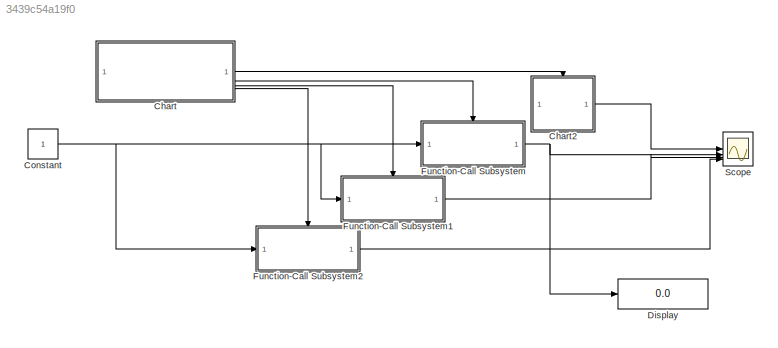
MODEL slx_3439c54a19f0
KIND model
CONFIG AbsTol = auto
CONFIG EnableMultiTasking = off
CONFIG FixedStep = auto
CONFIG MaxStep = auto
CONFIG MinStep = auto
CONFIG RelTol = 1e-3
CONFIG SampleTimeConstraint = Unconstrained
CONFIG SolverName = VariableStepAuto
CONFIG StartTime = 0.0
CONFIG StopTime = 10.0
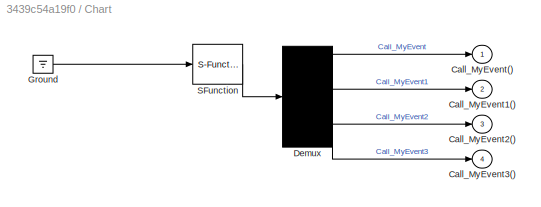
BLOCK [SubSystem] Chart
  ErrorFcn = Stateflow.Translate.translate
  PermitHierarchicalResolution = ExplicitOnly
  SFBlockType = Chart
  TreatAsAtomicUnit = on
BLOCK [Demux] Chart/ Demux 
BLOCK [Ground] Chart/ Ground 
BLOCK [S-Function] Chart/ SFunction 
  EnableBusSupport = on
  FunctionName = sf_sfun
  PortCounts = [1 1]
  SFcnIsStateOwnerBlock = off
  SFunctionDeploymentMode = off
  Tag = Stateflow S-Function 3
BLOCK [Outport] Chart/Call_MyEvent()
BLOCK [Outport] Chart/Call_MyEvent1()
  Port = 2
BLOCK [Outport] Chart/Call_MyEvent2()
  Port = 3
BLOCK [Outport] Chart/Call_MyEvent3()
  Port = 4
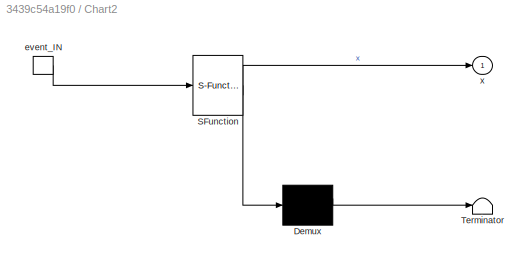
BLOCK [SubSystem] Chart2
  ErrorFcn = Stateflow.Translate.translate
  PermitHierarchicalResolution = ExplicitOnly
  SFBlockType = Chart
  TreatAsAtomicUnit = on
BLOCK [Demux] Chart2/ Demux 
  Outputs = 1
BLOCK [S-Function] Chart2/ SFunction 
  EnableBusSupport = on
  FunctionName = sf_sfun
  PortCounts = [1 2]
  SFcnIsStateOwnerBlock = off
  SFunctionDeploymentMode = off
  Tag = Stateflow S-Function 2
BLOCK [Terminator] Chart2/ Terminator 
BLOCK [TriggerPort] Chart2/event_IN
  ShowOutputPort = on
  StatesWhenEnabling = held
  TriggerType = function-call
  VariantControl = (inherit)
BLOCK [Outport] Chart2/x
BLOCK [Constant] Constant
  OutDataTypeStr = uint8
BLOCK [Display] Display
  Decimation = 1
  Format = binary (Stored Integer)
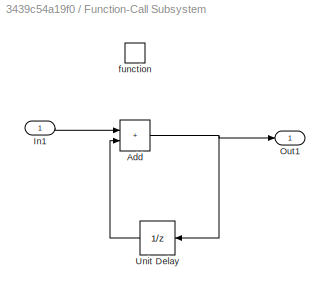
BLOCK [SubSystem] Function-Call Subsystem
  TreatAsAtomicUnit = on
BLOCK [Sum] Function-Call Subsystem/Add
  IconShape = rectangular
BLOCK [Inport] Function-Call Subsystem/In1
BLOCK [Outport] Function-Call Subsystem/Out1
BLOCK [UnitDelay] Function-Call Subsystem/Unit Delay
  HasFrameUpgradeWarning = on
  NameLocation = top
  SampleTime = -1
BLOCK [TriggerPort] Function-Call Subsystem/function
  StatesWhenEnabling = held
  TriggerType = function-call
  VariantControl = (inherit)
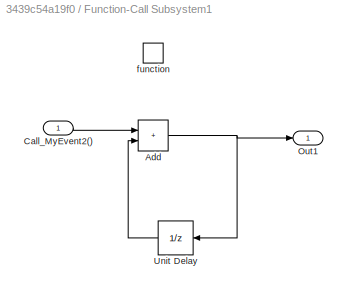
BLOCK [SubSystem] Function-Call Subsystem1
  TreatAsAtomicUnit = on
BLOCK [Sum] Function-Call Subsystem1/Add
  IconShape = rectangular
BLOCK [Inport] Function-Call Subsystem1/Call_MyEvent2()
BLOCK [Outport] Function-Call Subsystem1/Out1
BLOCK [UnitDelay] Function-Call Subsystem1/Unit Delay
  HasFrameUpgradeWarning = on
  NameLocation = top
  SampleTime = -1
BLOCK [TriggerPort] Function-Call Subsystem1/function
  StatesWhenEnabling = held
  TriggerType = function-call
  VariantControl = (inherit)
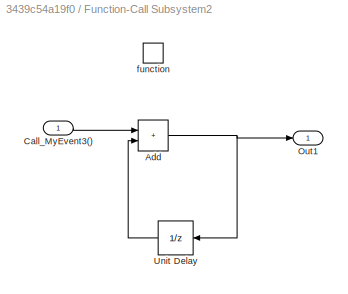
BLOCK [SubSystem] Function-Call Subsystem2
  TreatAsAtomicUnit = on
BLOCK [Sum] Function-Call Subsystem2/Add
  IconShape = rectangular
BLOCK [Inport] Function-Call Subsystem2/Call_MyEvent3()
BLOCK [Outport] Function-Call Subsystem2/Out1
BLOCK [UnitDelay] Function-Call Subsystem2/Unit Delay
  HasFrameUpgradeWarning = on
  NameLocation = top
  SampleTime = -1
BLOCK [TriggerPort] Function-Call Subsystem2/function
  StatesWhenEnabling = held
  TriggerType = function-call
  VariantControl = (inherit)
BLOCK [Scope] Scope
  Floating = off
  NumInputPorts = 4
  ScopeSpecificationString = Simulink.scopes.TimeScopeBlockCfg('CurrentConfiguration', extmgr.ConfigurationSet(extmgr.Configuration('Core','General UI',true),extmgr.Configuration('Core','Source UI',true),extmgr.Configuration('Sources','WiredSimulink',true),extmgr.Configuration('Visuals','Time Domain',true,'SerializedDisplays',{struct('MinYLimReal','-0.75','MaxYLimReal','6.75','YLabelReal','','MinYLimMag','0.00000','MaxYLimMag...<+3842ch>
LINE Chart2:1 -> Scope:1
LINE Chart:1 -> Chart2:trigger
LINE Chart:2 -> Function-Call Subsystem:trigger
LINE Chart:3 -> Function-Call Subsystem1:trigger
LINE Chart:4 -> Function-Call Subsystem2:trigger
NET Constant:1 -> Function-Call Subsystem1:1, Function-Call Subsystem2:1, Function-Call Subsystem:1
NET Function-Call Subsystem/Add:1 -> Function-Call Subsystem/Out1:1, Function-Call Subsystem/Unit Delay:1
LINE Function-Call Subsystem/In1:1 -> Function-Call Subsystem/Add:1
LINE Function-Call Subsystem/Unit Delay:1 -> Function-Call Subsystem/Add:2
NET Function-Call Subsystem1/Add:1 -> Function-Call Subsystem1/Out1:1, Function-Call Subsystem1/Unit Delay:1
LINE Function-Call Subsystem1/Call_MyEvent2():1 -> Function-Call Subsystem1/Add:1
LINE Function-Call Subsystem1/Unit Delay:1 -> Function-Call Subsystem1/Add:2
LINE Function-Call Subsystem1:1 -> Scope:3
NET Function-Call Subsystem2/Add:1 -> Function-Call Subsystem2/Out1:1, Function-Call Subsystem2/Unit Delay:1
LINE Function-Call Subsystem2/Call_MyEvent3():1 -> Function-Call Subsystem2/Add:1
LINE Function-Call Subsystem2/Unit Delay:1 -> Function-Call Subsystem2/Add:2
LINE Function-Call Subsystem2:1 -> Scope:4
NET Function-Call Subsystem:1 -> Display:1, Scope:2
note: NET lines group one-source signal fan-out (src -> all destinations, sorted); 1:1 wires keep LINE
CHART Chart2 states=2 transitions=3
  STATE_LABEL 'State_A\n\nen:\nx=3;'
  STATE_LABEL 'State_B\nen:\nx=6;'
CHART Chart states=8 transitions=6
  STATE_LABEL 'State_A'
  STATE_LABEL 'A'
  STATE_LABEL 'after(0.5,sec)/{Call_MyEvent}'
  STATE_LABEL 'A'
  STATE_LABEL 'State_C'
  STATE_LABEL 'A'
  STATE_LABEL 'after(1.5,sec)/{Call_MyEvent2}'
  STATE_LABEL 'A'
  STATE_LABEL 'State_B'
  STATE_LABEL 'B\n'
  STATE_LABEL 'after(1,sec)/{Call_MyEvent1}'
  STATE_LABEL 'B\n'
  STATE_LABEL 'State_D'
  STATE_LABEL 'B\n'
  STATE_LABEL 'after(2  ,sec)/{Call_MyEvent3}'
  STATE_LABEL 'B\n'
CHART  states=0 transitions=0
CHART  states=0 transitions=0
